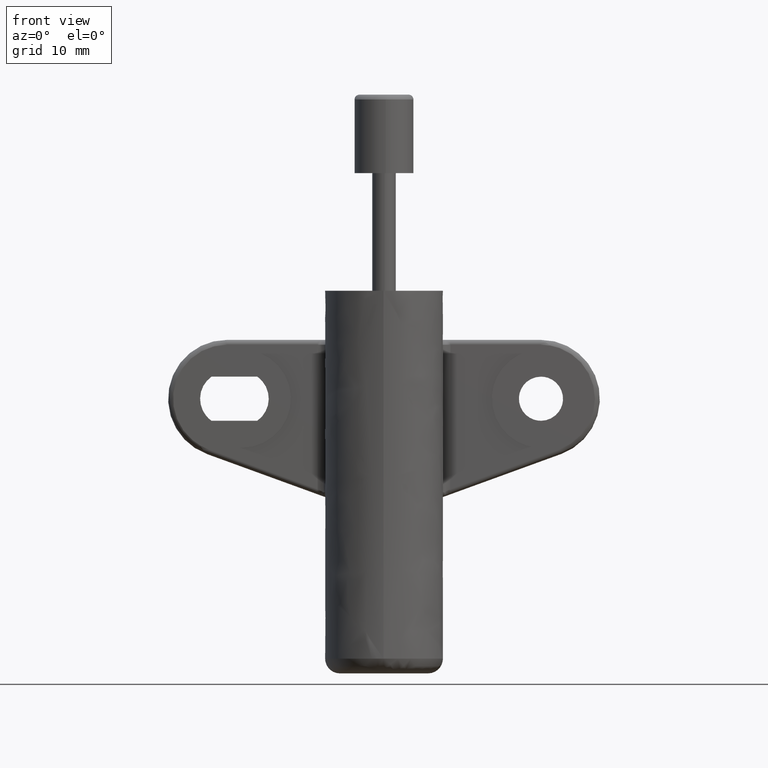
[diagram: clean part render]
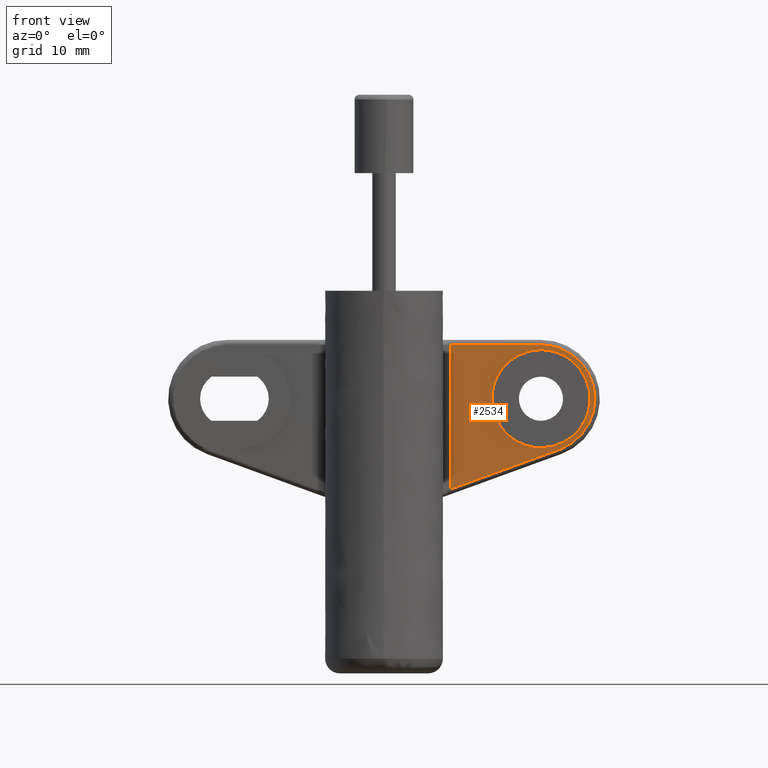
[diagram: same view with one face highlighted and labeled with its STEP entity id]
A machine part, front view. The second image highlights one B-rep face of the part: STEP entity #2534.
In plain terms, the highlighted face is a freeform B-spline surface patch.
Its self-contained STEP definition (entity closure, byte-faithful):
#1730=CARTESIAN_POINT('',(16.0,2.800000000000135,-16.0));
#1731=VERTEX_POINT('',#1730);
#1732=CARTESIAN_POINT('',(20.984586668660370,2.800000000000135,-11.392295478706140));
#1733=VERTEX_POINT('',#1732);
#1734=CARTESIAN_POINT('',(16.0,2.800000000000135,-16.0));
#1735=CARTESIAN_POINT('',(20.621952458228801,2.800000000000134,-16.0));
#1736=CARTESIAN_POINT('',(20.984586668660377,2.800000000000135,-11.392295478706151));
#1744=(BOUNDED_CURVE()B_SPLINE_CURVE(2,(#1734,#1735,#1736),.UNSPECIFIED.,.F.,.U.)B_SPLINE_CURVE_WITH_KNOTS((3,3),(0.0,0.236331300630465),.UNSPECIFIED.)CURVE()GEOMETRIC_REPRESENTATION_ITEM()RATIONAL_B_SPLINE_CURVE((1.0,0.723120658607893,0.969723356167012))REPRESENTATION_ITEM(''));
#1745=EDGE_CURVE('',#1731,#1733,#1744,.T.);
#1754=CARTESIAN_POINT('',(11.015413331339630,2.800000000000135,-10.607704521293860));
#1755=VERTEX_POINT('',#1754);
#1761=CARTESIAN_POINT('',(11.015413331339630,2.800000000000135,-10.607704521293861));
#1762=CARTESIAN_POINT('',(11.0,2.800000000000135,-10.803549464928039));
#1763=CARTESIAN_POINT('',(11.0,2.800000000000135,-11.0));
#1764=CARTESIAN_POINT('',(11.0,2.800000000000136,-15.999999999999998));
#1765=CARTESIAN_POINT('',(16.0,2.800000000000135,-16.0));
#1773=(BOUNDED_CURVE()B_SPLINE_CURVE(2,(#1761,#1762,#1763,#1764,#1765),.UNSPECIFIED.,.F.,.U.)B_SPLINE_CURVE_WITH_KNOTS((3,2,3),(0.736331300630466,0.750000000000000,1.0),.UNSPECIFIED.)CURVE()GEOMETRIC_REPRESENTATION_ITEM()RATIONAL_B_SPLINE_CURVE((0.969723356167013,0.983986122578655,1.0,0.707106781186548,1.0))REPRESENTATION_ITEM(''));
#1774=EDGE_CURVE('',#1755,#1731,#1773,.T.);
#1797=CARTESIAN_POINT('',(16.0,2.800000000000135,-5.999999999999999));
#1798=VERTEX_POINT('',#1797);
#1799=CARTESIAN_POINT('',(20.984586668660377,2.800000000000135,-11.392295478706151));
#1800=CARTESIAN_POINT('',(21.000000000000007,2.800000000000135,-11.196450535071961));
#1801=CARTESIAN_POINT('',(21.0,2.800000000000135,-11.0));
#1802=CARTESIAN_POINT('',(21.000000000000004,2.800000000000136,-5.999999999999999));
#1803=CARTESIAN_POINT('',(16.0,2.800000000000135,-5.999999999999999));
#1811=(BOUNDED_CURVE()B_SPLINE_CURVE(2,(#1799,#1800,#1801,#1802,#1803),.UNSPECIFIED.,.F.,.U.)B_SPLINE_CURVE_WITH_KNOTS((3,2,3),(0.236331300630465,0.250000000000000,0.500000000000000),.UNSPECIFIED.)CURVE()GEOMETRIC_REPRESENTATION_ITEM()RATIONAL_B_SPLINE_CURVE((0.969723356167012,0.983986122578654,1.0,0.707106781186548,1.0))REPRESENTATION_ITEM(''));
#1812=EDGE_CURVE('',#1733,#1798,#1811,.T.);
#1814=CARTESIAN_POINT('',(16.0,2.800000000000135,-5.999999999999999));
#1815=CARTESIAN_POINT('',(11.378047541771204,2.800000000000135,-5.999999999999999));
#1816=CARTESIAN_POINT('',(11.015413331339630,2.800000000000135,-10.607704521293861));
#1824=(BOUNDED_CURVE()B_SPLINE_CURVE(2,(#1814,#1815,#1816),.UNSPECIFIED.,.F.,.U.)B_SPLINE_CURVE_WITH_KNOTS((3,3),(0.500000000000000,0.736331300630466),.UNSPECIFIED.)CURVE()GEOMETRIC_REPRESENTATION_ITEM()RATIONAL_B_SPLINE_CURVE((1.0,0.723120658607893,0.969723356167013))REPRESENTATION_ITEM(''));
#1825=EDGE_CURVE('',#1798,#1755,#1824,.T.);
#2448=CARTESIAN_POINT('',(6.764613810115111,2.800000000000095,-20.214383423688751));
#2449=VERTEX_POINT('',#2448);
#2463=CARTESIAN_POINT('',(6.764613810115111,2.800000000000095,-5.500000000000000));
#2464=VERTEX_POINT('',#2463);
#2465=CARTESIAN_POINT('',(6.764613810115111,2.800000000000095,-5.500000000000000));
#2466=CARTESIAN_POINT('',(6.764613810115111,2.800000000000095,-20.214383423688751));
#2467=QUASI_UNIFORM_CURVE('',1,(#2465,#2466),.UNSPECIFIED.,.F.,.U.);
#2468=EDGE_CURVE('',#2464,#2449,#2467,.T.);
#2485=CARTESIAN_POINT('',(6.028599914276350,2.800000000000095,-20.949366847182681));
#2486=CARTESIAN_POINT('',(22.235641602445149,2.800000000000095,-20.949366847182681));
#2487=CARTESIAN_POINT('',(6.028599914276350,2.800000000000095,-4.765016181835558));
#2488=CARTESIAN_POINT('',(22.235641602445149,2.800000000000095,-4.765016181835558));
#2489=B_SPLINE_SURFACE_WITH_KNOTS('',1,1,((#2485,#2487),(#2486,#2488)),.UNSPECIFIED.,.F.,.F.,.U.,(2,2),(2,2),(0.0,16.207041688168800),(0.0,16.184350665347122),.UNSPECIFIED.);
#2490=ORIENTED_EDGE('',*,*,#2468,.T.);
#2491=CARTESIAN_POINT('',(17.881110788291149,2.800000000000095,-16.168309414322501));
#2492=VERTEX_POINT('',#2491);
#2493=CARTESIAN_POINT('',(6.764613810115111,2.800000000000095,-20.214383423688751));
#2494=CARTESIAN_POINT('',(17.881110788291149,2.800000000000095,-16.168309414322501));
#2495=QUASI_UNIFORM_CURVE('',1,(#2493,#2494),.UNSPECIFIED.,.F.,.U.);
#2496=EDGE_CURVE('',#2449,#2492,#2495,.T.);
#2497=ORIENTED_EDGE('',*,*,#2496,.T.);
#2498=CARTESIAN_POINT('',(16.0,2.800000000000095,-5.500000000000000));
#2499=VERTEX_POINT('',#2498);
#2500=CARTESIAN_POINT('',(17.881110788291149,2.800000000000095,-16.168309414322501));
#2501=CARTESIAN_POINT('',(18.294589410095892,2.800000000000094,-16.017937780356419));
#2502=CARTESIAN_POINT('',(18.905370651560180,2.800000000000096,-15.708187857040640));
#2503=CARTESIAN_POINT('',(19.764003908081570,2.800000000000098,-15.049385273611950));
#2504=CARTESIAN_POINT('',(20.402791143653829,2.800000000000094,-14.352267582039410));
#2505=CARTESIAN_POINT('',(20.990967566063588,2.800000000000087,-13.394798763278580));
#2506=CARTESIAN_POINT('',(21.375360010994100,2.800000000000098,-12.356517553176911));
#2507=CARTESIAN_POINT('',(21.517404498400492,2.800000000000091,-11.320674746817421));
#2508=CARTESIAN_POINT('',(21.484605645877821,2.800000000000108,-10.319131943142640));
#2509=CARTESIAN_POINT('',(21.311335005316192,2.800000000000114,-9.472135815040943));
#2510=CARTESIAN_POINT('',(20.977165380278411,2.800000000000063,-8.612930193336302));
#2511=CARTESIAN_POINT('',(20.510129351982329,2.800000000000141,-7.793597501791973));
#2512=CARTESIAN_POINT('',(19.776636946371351,2.799999999999987,-6.938480767211702));
#2513=CARTESIAN_POINT('',(18.854992383599289,2.800000000000149,-6.254982105436234));
#2514=CARTESIAN_POINT('',(17.981638626682809,2.800000000000086,-5.847818743421245));
#2515=CARTESIAN_POINT('',(17.059875764852219,2.800000000000098,-5.573674648584050));
#2516=CARTESIAN_POINT('',(16.419971745474459,2.800000000000093,-5.499914151005376));
#2517=CARTESIAN_POINT('',(16.0,2.800000000000095,-5.500000000000000));
#2518=B_SPLINE_CURVE_WITH_KNOTS('',3,(#2500,#2501,#2502,#2503,#2504,#2505,#2506,#2507,#2508,#2509,#2510,#2511,#2512,#2513,#2514,#2515,#2516,#2517),.UNSPECIFIED.,.F.,.U.,(4,1,1,1,1,1,1,1,1,1,1,1,1,1,1,4),(0.000000057768480,1.319888108609591,2.039852542200269,3.239777627123475,4.139726817478984,5.399640857481879,6.539571485476431,7.259545996468145,8.399410125338418,9.119382114525857,10.019315487484180,11.219247563315010,12.479173937119491,13.439105333337571,14.099083186272431,15.358973563121310),.UNSPECIFIED.);
#2519=EDGE_CURVE('',#2492,#2499,#2518,.T.);
#2520=ORIENTED_EDGE('',*,*,#2519,.T.);
#2521=CARTESIAN_POINT('',(16.0,2.800000000000095,-5.500000000000000));
#2522=CARTESIAN_POINT('',(6.764613810115111,2.800000000000095,-5.500000000000000));
#2523=QUASI_UNIFORM_CURVE('',1,(#2521,#2522),.UNSPECIFIED.,.F.,.U.);
#2524=EDGE_CURVE('',#2499,#2464,#2523,.T.);
#2525=ORIENTED_EDGE('',*,*,#2524,.T.);
#2526=EDGE_LOOP('',(#2490,#2497,#2520,#2525));
#2527=FACE_OUTER_BOUND('',#2526,.T.);
#2528=ORIENTED_EDGE('',*,*,#1825,.F.);
#2529=ORIENTED_EDGE('',*,*,#1812,.F.);
#2530=ORIENTED_EDGE('',*,*,#1745,.F.);
#2531=ORIENTED_EDGE('',*,*,#1774,.F.);
#2532=EDGE_LOOP('',(#2528,#2529,#2530,#2531));
#2533=FACE_BOUND('',#2532,.T.);
#2534=ADVANCED_FACE('',(#2527,#2533),#2489,.T.);